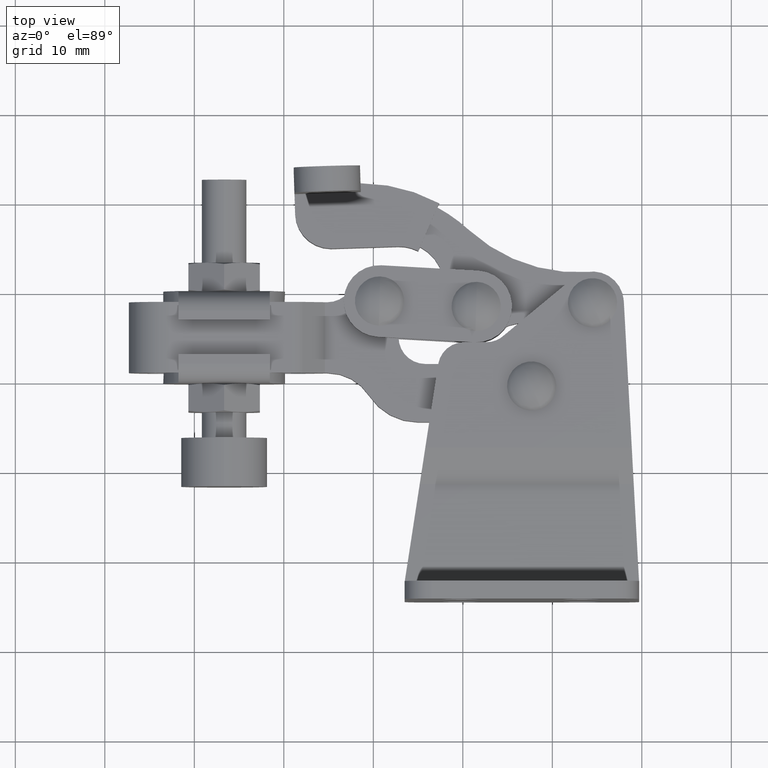
[diagram: clean part render]
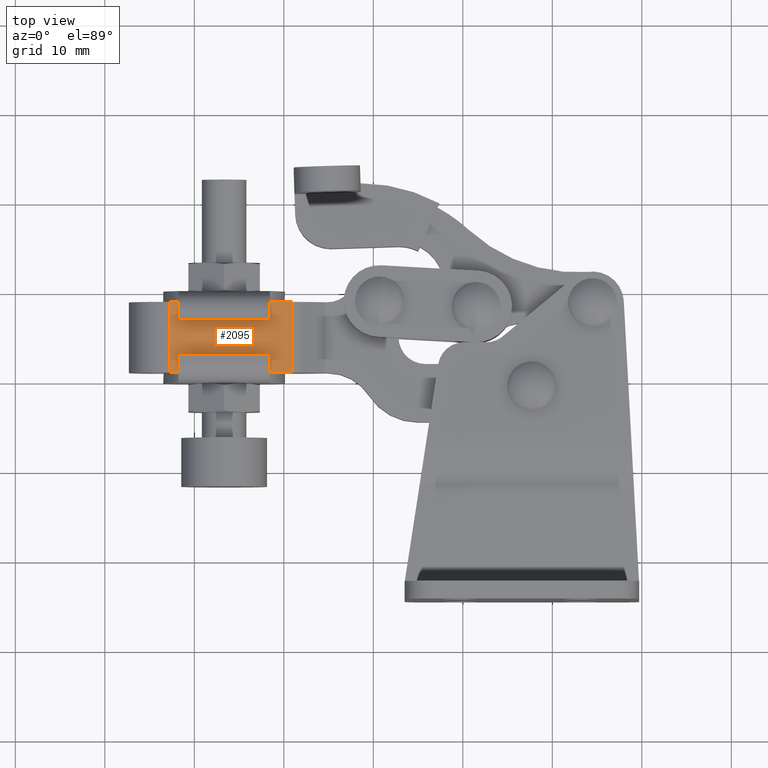
[diagram: same view with one face highlighted and labeled with its STEP entity id]
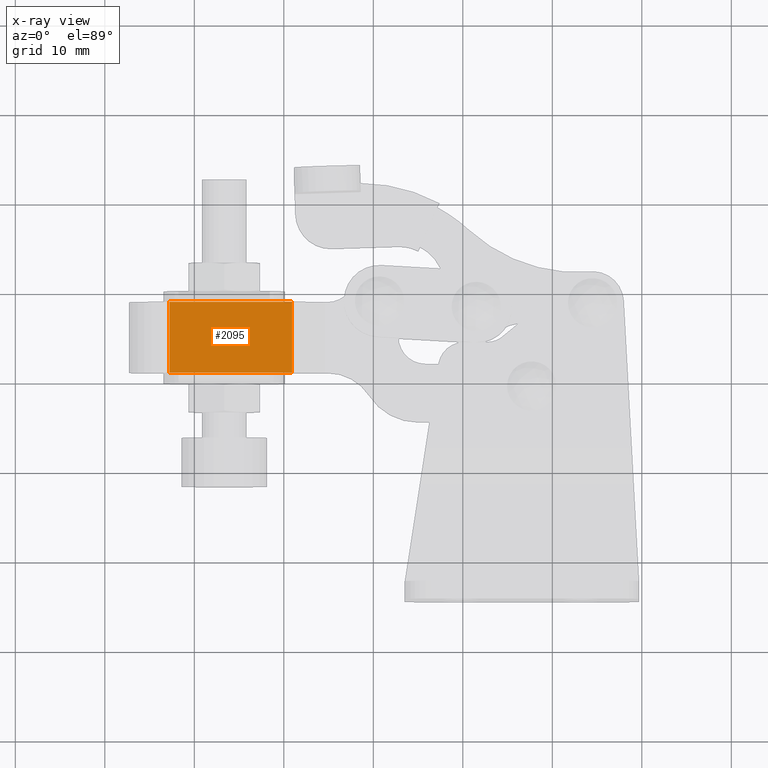
[diagram: x-ray of the same camera — body ghosted, the highlighted face saturated]
A machine part, top view. The second image highlights one B-rep face of the part: STEP entity #2095.
The next image is the same camera in x-ray: the body ghosted, the highlighted face saturated — about 0% of this face is hidden behind the body in this view.
In plain terms, the highlighted planar face has unit normal (-0, -0, -1).
Its self-contained STEP definition (entity closure, byte-faithful):
#290 = VERTEX_POINT ( 'NONE', #6278 ) ;
#547 = CARTESIAN_POINT ( 'NONE',  ( -9.088997005149462200, 65.40000000000239300, 15.64979700761278500 ) ) ;
#790 = VERTEX_POINT ( 'NONE', #9105 ) ;
#858 = VERTEX_POINT ( 'NONE', #6123 ) ;
#1788 = ORIENTED_EDGE ( 'NONE', *, *, #2484, .T. ) ;
#1849 = ORIENTED_EDGE ( 'NONE', *, *, #8290, .T. ) ;
#1873 = ORIENTED_EDGE ( 'NONE', *, *, #3677, .F. ) ;
#2018 = VECTOR ( 'NONE', #2053, 1000.000000000000000 ) ;
#2053 = DIRECTION ( 'NONE',  ( -1.170938346284344800E-016, -1.000000000000000000, 9.155670635840493100E-019 ) ) ;
#2095 = ADVANCED_FACE ( 'NONE', ( #3682 ), #4554, .F. ) ;
#2257 = CARTESIAN_POINT ( 'NONE',  ( -22.80640179179124500, 65.40000000000239300, 15.64979700761279900 ) ) ;
#2300 = CARTESIAN_POINT ( 'NONE',  ( -22.80640179179124500, 50.90000000000235000, 15.64979700761279900 ) ) ;
#2406 = DIRECTION ( 'NONE',  ( -1.170938346284344800E-016, -1.000000000000000000, 9.155670635840493100E-019 ) ) ;
#2484 = EDGE_CURVE ( 'NONE', #290, #858, #4049, .T. ) ;
#3018 = DIRECTION ( 'NONE',  ( 1.000000000000000000, 1.084202172485504400E-019, -1.121142447841948800E-015 ) ) ;
#3035 = CARTESIAN_POINT ( 'NONE',  ( -9.088997005149483500, 50.90000000000234300, 15.64979700761278300 ) ) ;
#3038 = DIRECTION ( 'NONE',  ( -1.121142447841948800E-015, -9.155670635845677700E-019, -1.000000000000000000 ) ) ;
#3130 = EDGE_CURVE ( 'NONE', #858, #4445, #4974, .T. ) ;
#3677 = EDGE_CURVE ( 'NONE', #790, #4445, #4250, .T. ) ;
#3682 = FACE_OUTER_BOUND ( 'NONE', #8412, .T. ) ;
#4049 = LINE ( 'NONE', #8895, #2018 ) ;
#4250 = LINE ( 'NONE', #547, #5324 ) ;
#4445 = VERTEX_POINT ( 'NONE', #3035 ) ;
#4546 = VECTOR ( 'NONE', #7061, 1000.000000000000000 ) ;
#4554 = PLANE ( 'NONE',  #9890 ) ;
#4974 = LINE ( 'NONE', #2300, #6534 ) ;
#5324 = VECTOR ( 'NONE', #2406, 1000.000000000000000 ) ;
#6123 = CARTESIAN_POINT ( 'NONE',  ( -22.80640179179124500, 50.90000000000235000, 15.64979700761279900 ) ) ;
#6278 = CARTESIAN_POINT ( 'NONE',  ( -22.80640179179124500, 58.80000000000234900, 15.64979700761279900 ) ) ;
#6534 = VECTOR ( 'NONE', #3018, 1000.000000000000000 ) ;
#7061 = DIRECTION ( 'NONE',  ( -1.000000000000000000, -3.935653886122381100E-017, 1.121142447841948800E-015 ) ) ;
#7842 = CARTESIAN_POINT ( 'NONE',  ( -22.80640179179124500, 58.80000000000234900, 15.64979700761279900 ) ) ;
#8290 = EDGE_CURVE ( 'NONE', #790, #290, #8636, .T. ) ;
#8411 = DIRECTION ( 'NONE',  ( -1.000000000000000000, 1.170938346284344800E-016, 1.121142447841948800E-015 ) ) ;
#8412 = EDGE_LOOP ( 'NONE', ( #1873, #1849, #1788, #9768 ) ) ;
#8636 = LINE ( 'NONE', #7842, #4546 ) ;
#8895 = CARTESIAN_POINT ( 'NONE',  ( -22.80640179179124500, 65.40000000000239300, 15.64979700761279900 ) ) ;
#9105 = CARTESIAN_POINT ( 'NONE',  ( -9.088997005149483500, 58.80000000000234900, 15.64979700761278300 ) ) ;
#9768 = ORIENTED_EDGE ( 'NONE', *, *, #3130, .T. ) ;
#9890 = AXIS2_PLACEMENT_3D ( 'NONE', #2257, #3038, #8411 ) ;